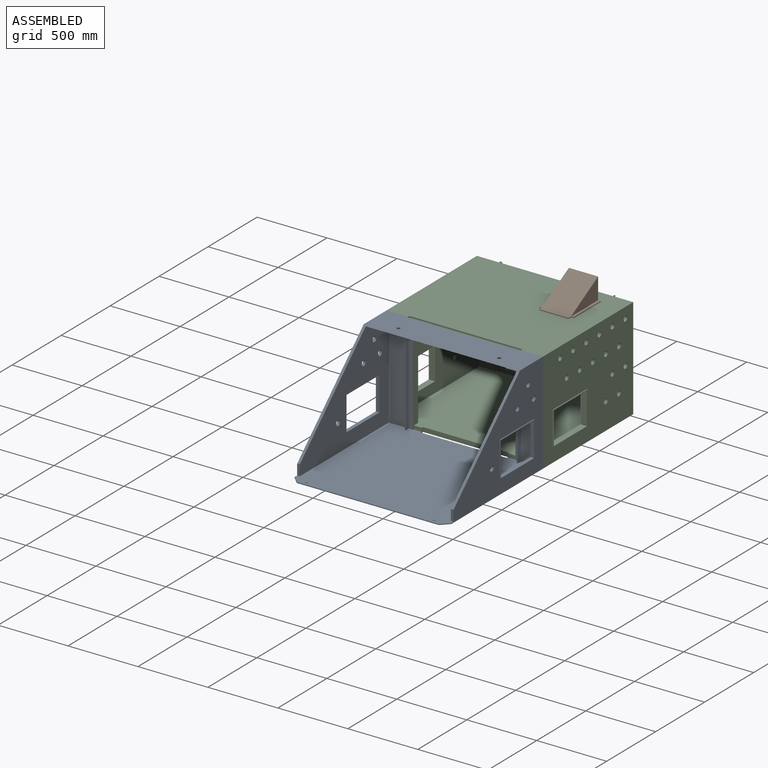
[diagram: assembled view]
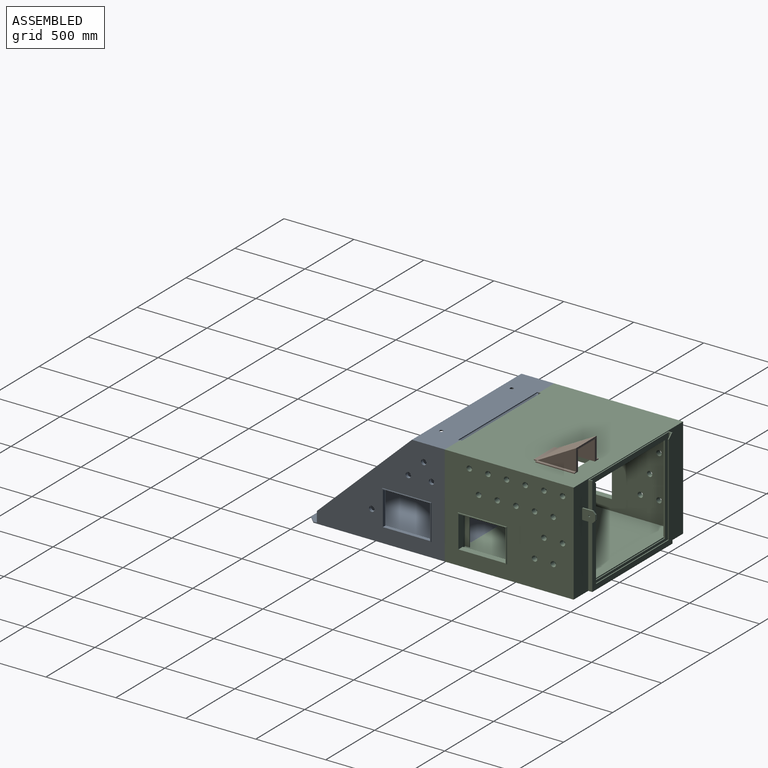
[diagram: assembled view, second angle]
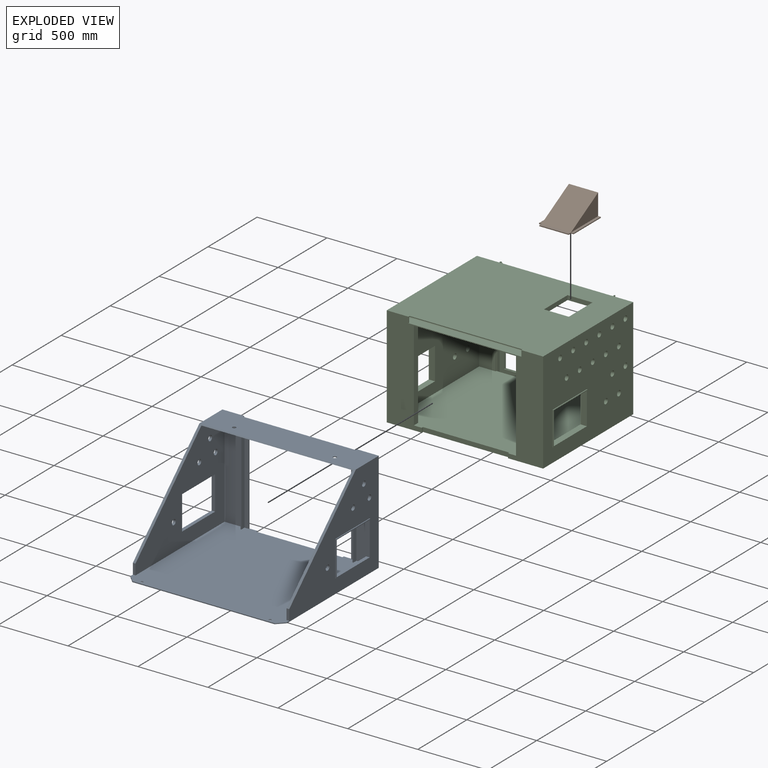
[diagram: exploded view]
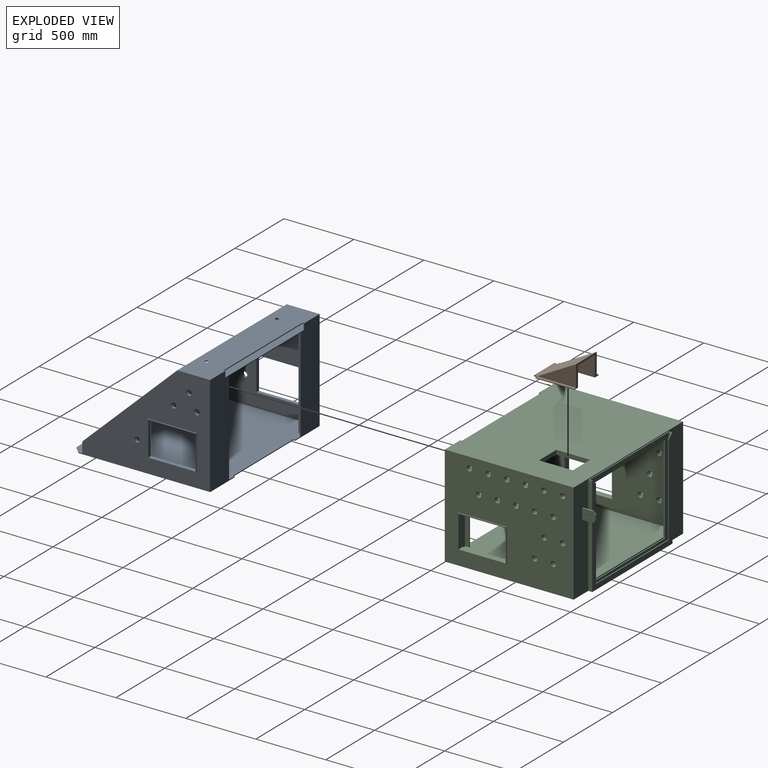
[diagram: exploded view, second angle]
ASSEMBLY  parts=3 mates=2
PART A: 72 faces, bbox 1130.3x990.6x723.9 mm
  f0: plane 1117.6x990.6mm, normal (0,0,-1), area 1096295.5mm2, adj f5,f22,f50,f51,f52,f63,f67,f68
  f1: plane 1117.6x990.6mm, normal (0,0,1), area 1058835.9mm2, adj f2,f3,f5,f6,f8,f9,f10,f19
  f2: plane 75.85x19.05mm, normal (0,1,0), area 1444.9mm2, adj f1,f21,f22,f66
  f3: plane 75.85x19.05mm, normal (0,1,0), area 1444.9mm2, adj f1,f5,f20,f66
  f4: plane 1117.6x234.95mm, normal (0,0,1), area 251324.8mm2, adj f5,f16,f17,f22,f53,f63,f64,f65
  f5: plane 939.8x723.9mm, normal (-1,0,0), area 350823.1mm2, adj f0,f1,f3,f4,f37,f38,f39,f40
  f6: plane 669.2x31.75mm, normal (1,0,0), area 21247mm2, adj f1,f7,f60,f62
  f7: plane 1079.5x66.12mm, normal (0,0,-1), area 68751.7mm2, adj f6,f8,f9,f10,f19,f20,f21,f23
  f8: plane 669.2x31.75mm, normal (-1,0,0), area 21247mm2, adj f1,f7,f10,f58
  f9: plane 669.2x31.75mm, normal (1,0,0), area 21247mm2, adj f1,f7,f10,f23
  f10: plane 669.2x6.35mm, normal (0,1,0), area 4249.4mm2, adj f1,f7,f8,f9
  f11: plane 1079.5x93.07mm, normal (0,0,-1), area 95346.4mm2, adj f12,f13,f14,f15,f16,f17,f53,f56
  f12: plane 136.53x35.65mm, normal (0,1,0), area 4867.4mm2, adj f11,f13,f16,f54
  f13: plane 93.07x35.65mm, normal (1,0,0), area 2677.8mm2, adj f11,f12,f54,f56
  f14: plane 93.07x35.65mm, normal (-1,0,0), area 2677.8mm2, adj f11,f15,f54,f56
  f15: plane 136.53x35.65mm, normal (0,1,0), area 4867.4mm2, adj f11,f14,f17,f54
  f16: plane 42x12.7mm, normal (1,0,0), area 307mm2, adj f4,f11,f12,f53,f54,f63
  f17: plane 42x12.7mm, normal (-1,0,0), area 307mm2, adj f4,f11,f15,f53,f54,f63
  f18: plane 1079.5x133.24mm, normal (0,0,-1), area 142820.5mm2, adj f20,f21,f55,f64,f65,f66
  f19: plane 669.2x136.53mm, normal (0,1,0), area 91362.3mm2, adj f1,f7,f20,f59
  f20: plane 908.05x711.2mm, normal (1,0,0), area 342927mm2, adj f1,f3,f7,f18,f19,f28,f29,f30
  f21: plane 908.05x711.2mm, normal (-1,0,0), area 342927mm2, adj f1,f2,f7,f18,f23,f24,f25,f26
  f22: plane 939.8x723.9mm, normal (1,0,0), area 350823.1mm2, adj f0,f1,f2,f4,f32,f33,f34,f35
  f23: plane 669.2x136.53mm, normal (0,1,0), area 91362.3mm2, adj f1,f7,f9,f21
  f24: plane 241.3x25.4mm, normal (0,-1,0), area 6129mm2, adj f21,f25,f27,f36
  f25: plane 336.55x25.4mm, normal (0,0,1), area 8548.4mm2, adj f21,f24,f26,f36
  f26: plane 241.3x25.4mm, normal (0,1,0), area 6129mm2, adj f21,f25,f27,f36
  f27: plane 336.55x25.4mm, normal (0,0,-1), area 8548.4mm2, adj f21,f24,f26,f36
  f28: plane 336.55x25.4mm, normal (0,0,-1), area 8548.4mm2, adj f20,f29,f31,f41
  f29: plane 241.3x25.4mm, normal (0,1,0), area 6129mm2, adj f20,f28,f30,f41
  f30: plane 336.55x25.4mm, normal (0,0,1), area 8548.4mm2, adj f20,f29,f31,f41
  f31: plane 241.3x25.4mm, normal (0,-1,0), area 6129mm2, adj f20,f28,f30,f41
  f32: plane 349.25x6.35mm, normal (0,0,1), area 2217.7mm2, adj f22,f33,f35,f36
  f33: plane 254x6.35mm, normal (0,-1,0), area 1612.9mm2, adj f22,f32,f34,f36
  f34: plane 349.25x6.35mm, normal (0,0,-1), area 2217.7mm2, adj f22,f33,f35,f36
  f35: plane 254x6.35mm, normal (0,1,0), area 1612.9mm2, adj f22,f32,f34,f36
  f36: plane 349.25x254mm, normal (1,0,0), area 7500mm2, adj f24,f25,f26,f27,f32,f33,f34,f35
  f37: plane 254x6.35mm, normal (0,-1,0), area 1612.9mm2, adj f5,f38,f40,f41
  f38: plane 349.25x6.35mm, normal (0,0,1), area 2217.7mm2, adj f5,f37,f39,f41
  f39: plane 254x6.35mm, normal (0,1,0), area 1612.9mm2, adj f5,f38,f40,f41
  f40: plane 349.25x6.35mm, normal (0,0,-1), area 2217.7mm2, adj f5,f37,f39,f41
  f41: plane 349.25x254mm, normal (-1,0,0), area 7500mm2, adj f28,f29,f30,f31,f37,f38,f39,f40
  f42: cylinder r=19.05mm len=38.1mm, axis (-1,0,0), area 2280.2mm2, adj f21,f22
  f43: cylinder r=19.05mm len=38.1mm, axis (-1,0,0), area 2280.2mm2, adj f5,f20
  f44: cylinder r=19.05mm len=38.1mm, axis (-1,0,0), area 2280.2mm2, adj f21,f22
  f45: cylinder r=19.05mm len=38.1mm, axis (-1,0,0), area 2280.2mm2, adj f5,f20
  f46: cylinder r=19.05mm len=38.1mm, axis (-1,0,0), area 2280.2mm2, adj f21,f22
  f47: cylinder r=19.05mm len=38.1mm, axis (-1,0,0), area 2280.2mm2, adj f5,f20
  f48: cylinder r=19.05mm len=38.1mm, axis (-1,0,0), area 2280.2mm2, adj f21,f22
  f49: cylinder r=19.05mm len=38.1mm, axis (-1,0,0), area 2280.2mm2, adj f5,f20
  f50: plane 12.7x6.35mm, normal (1,0,0), area 80.6mm2, adj f0,f1,f52,f63
  f51: plane 12.7x6.35mm, normal (-1,0,0), area 80.6mm2, adj f0,f1,f52,f63
  f52: plane 615.95x6.35mm, normal (0,-1,0), area 3911.3mm2, adj f0,f1,f50,f51
  f53: plane 806.45x6.35mm, normal (0,-1,0), area 5121mm2, adj f4,f11,f16,f17
  f54: plane 1079.5x63.5mm, normal (0,0,1), area 66814.4mm2, adj f12,f13,f14,f15,f16,f17,f56,f63
  f55: plane 1079.5x42.32mm, normal (0,0.7,-0.71), area 64362mm2, adj f7,f18,f20,f21
  f56: plane 1079.5x35.92mm, normal (0,-0.7,0.71), area 54631.5mm2, adj f11,f13,f14,f54
  f57: plane 669.2x6.35mm, normal (-1,0,0), area 4249.4mm2, adj f1,f7,f58,f63
  f58: plane 669.2x31.75mm, normal (0,1,0), area 21247mm2, adj f1,f7,f8,f57
  f59: plane 669.2x31.75mm, normal (-1,0,0), area 21247mm2, adj f1,f7,f19,f60
  f60: plane 669.2x6.35mm, normal (0,1,0), area 4249.4mm2, adj f1,f6,f7,f59
  f61: plane 669.2x6.35mm, normal (1,0,0), area 4249.4mm2, adj f1,f7,f62,f63
  f62: plane 669.2x31.75mm, normal (0,1,0), area 21247mm2, adj f1,f6,f7,f61
  f63: plane 1117.6x723.9mm, normal (0,-1,0), area 282565mm2, adj f0,f1,f4,f5,f7,f16,f17,f22
  f64: cylinder r=12.7mm len=25.4mm, axis (0,0,1), area 506.7mm2, adj f4,f18
  f65: cylinder r=12.7mm len=25.4mm, axis (0,0,1), area 506.7mm2, adj f4,f18
  f66: plane 1117.6x679.45mm, normal (0,0.69,0.73), area 45590.8mm2, adj f2,f3,f4,f5,f18,f20,f21,f22
  f67: plane 1016x6.35mm, normal (0,1,0), area 6451.6mm2, adj f0,f1,f68,f69
  f68: plane 50.8x50.8mm, normal (-0.71,0.71,0), area 456.2mm2, adj f0,f1,f5,f67
  f69: plane 50.8x50.8mm, normal (0.71,0.71,0), area 456.2mm2, adj f0,f1,f22,f67
  f70: cylinder r=7.94mm len=15.88mm, axis (0,0,1), area 316.7mm2, adj f0,f1
  f71: cylinder r=7.94mm len=15.88mm, axis (0,0,1), area 316.7mm2, adj f0,f1
PART B: 26 faces, bbox 247.7x302.8x164.3 mm
  f0: plane 277.95x152.4mm, normal (1,0,0), area 21180.1mm2, adj f4,f5,f7
  f1: plane 24.15x6.35mm, normal (1,0,0), area 153.4mm2, adj f6,f7,f12,f14
  f2: plane 24.24x6.35mm, normal (-1,0,0), area 153.9mm2, adj f6,f7,f8,f12
  f3: plane 277.95x152.4mm, normal (-1,0,0), area 21180.1mm2, adj f4,f5,f7
  f4: plane 277.95x209.55mm, normal (0,0.48,0.88), area 66425.7mm2, adj f0,f3,f5,f7
  f5: plane 209.55x158.75mm, normal (0,-1,0), area 7106mm2, adj f0,f3,f4,f6,f11,f15,f17,f18
  f6: plane 302.26x247.65mm, normal (0,0,-1), area 26216mm2, adj f1,f2,f5,f8,f9,f10,f11,f12
  f7: plane 302.26x247.65mm, normal (0,0,1), area 15682.5mm2, adj f0,f1,f2,f3,f4,f8,f9,f10
  f8: plane 19.05x6.35mm, normal (0,1,0), area 121mm2, adj f2,f6,f7,f9
  f9: plane 278.03x6.35mm, normal (-1,0,0), area 1765.5mm2, adj f6,f7,f8,f10
  f10: plane 19.05x6.35mm, normal (0,-1,0), area 121mm2, adj f6,f7,f9,f11
  f11: plane 6.35x0.03mm, normal (1,0,0), area 0.2mm2, adj f5,f6,f7,f10
  f12: plane 209.55x6.35mm, normal (0,1,0), area 1330.6mm2, adj f1,f2,f6,f7
  f13: plane 278.11x6.35mm, normal (1,0,0), area 1766mm2, adj f6,f7,f14,f16
  f14: plane 19.05x6.35mm, normal (0,1,0), area 121mm2, adj f1,f6,f7,f13
  f15: plane 6.35x0.03mm, normal (-1,0,0), area 0.2mm2, adj f5,f6,f7,f16
  f16: plane 19.05x6.35mm, normal (0,-1,0), area 121mm2, adj f6,f7,f13,f15
  f17: plane 7.24x0.6mm, normal (-1,0,0), area 2.2mm2, adj f5,f22,f23
  f18: plane 7.24x0.6mm, normal (1,0,0), area 2.2mm2, adj f5,f22,f23
  f19: plane 13.21x5.57mm, normal (-1,0,0), area 36.8mm2, adj f6,f20,f23
  f20: plane 196.85x5.57mm, normal (0,0.88,-0.48), area 1250mm2, adj f6,f19,f21,f23
  f21: plane 13.21x5.57mm, normal (1,0,0), area 36.8mm2, adj f6,f20,f23
  f22: plane 196.85x6.91mm, normal (0,-1,0.09), area 1365.5mm2, adj f5,f17,f18,f23
  f23: plane 273.88x196.85mm, normal (0,-0.48,-0.88), area 53863.2mm2, adj f5,f6,f17,f18,f19,f20,f21,f22
  f24: plane 263.12x144.27mm, normal (1,0,0), area 18979.6mm2, adj f5,f6,f23
  f25: plane 263.12x144.27mm, normal (-1,0,0), area 18979.6mm2, adj f5,f6,f23
PART C: 131 faces, bbox 1130.3x1016x723.9 mm
  f0: plane 1041.4x895.35mm, normal (0,0,1), area 914272.4mm2, adj f1,f2,f3,f4,f5,f6,f7,f8
  f1: plane 857.25x685.8mm, normal (-1,0,0), area 471706.8mm2, adj f0,f13,f14,f15,f16,f55,f56,f57
  f2: plane 857.25x685.8mm, normal (1,0,0), area 471706.8mm2, adj f0,f13,f14,f15,f16,f59,f60,f61
  f3: plane 643.8x44.45mm, normal (-1,0,0), area 28616.8mm2, adj f0,f12,f13,f33
  f4: plane 660.4x6.35mm, normal (0,-1,0), area 4193.5mm2, adj f0,f16,f49,f127
  f5: plane 660.4x6.35mm, normal (0,-1,0), area 4193.5mm2, adj f0,f16,f51,f129
  f6: plane 643.8x31.75mm, normal (0,1,0), area 20440.6mm2, adj f0,f8,f13,f123
  f7: plane 643.8x31.75mm, normal (0,1,0), area 20440.6mm2, adj f0,f11,f13,f125
  f8: plane 643.8x31.75mm, normal (-1,0,0), area 20440.6mm2, adj f0,f6,f10,f13
  f9: plane 643.8x44.45mm, normal (1,0,0), area 28616.8mm2, adj f0,f10,f13,f33
  f10: plane 643.8x6.35mm, normal (0,1,0), area 4088.1mm2, adj f0,f8,f9,f13
  f11: plane 643.8x31.75mm, normal (1,0,0), area 20440.6mm2, adj f0,f7,f12,f13
  f12: plane 643.8x6.35mm, normal (0,1,0), area 4088.1mm2, adj f0,f3,f11,f13
  f13: plane 1041.4x66.12mm, normal (0,0,-1), area 60023mm2, adj f1,f2,f3,f6,f7,f8,f9,f10
  f14: plane 1041.4x42.32mm, normal (0,0.7,-0.71), area 62090.4mm2, adj f1,f2,f13,f15
  f15: plane 1041.4x25.4mm, normal (0,-1,0), area 26451.6mm2, adj f1,f2,f14,f16
  f16: plane 1041.4x786.92mm, normal (0,0,-1), area 775101mm2, adj f1,f2,f4,f5,f15,f103,f104,f105
  f17: plane 31.71x31.39mm, normal (-0.7,0,0.71), area 283.3mm2, adj f18,f22,f23,f24
  f18: plane 6.35x0.04mm, normal (0,0,1), area 0.2mm2, adj f17,f23,f24,f27
  f19: plane 31.75x31.39mm, normal (0.7,0,0.71), area 283.5mm2, adj f20,f23,f24,f31
  f20: plane 648.06x6.35mm, normal (1,0,0), area 4115.2mm2, adj f19,f21,f23,f24
  f21: plane 742.95x6.35mm, normal (0,0,1), area 4717.7mm2, adj f20,f22,f23,f24
  f22: plane 648.06x6.35mm, normal (-1,0,0), area 4115.2mm2, adj f17,f21,f23,f24
  f23: plane 819.15x717.59mm, normal (0,1,0), area 81987.8mm2, adj f17,f18,f19,f20,f21,f22,f27,f28
  f24: plane 806.45x711.2mm, normal (0,-1,0), area 67753.8mm2, adj f17,f18,f19,f20,f21,f22,f25,f26
  f25: plane 711.2x15.88mm, normal (1,0,0), area 11290.3mm2, adj f24,f26,f31,f46
  f26: plane 806.45x15.88mm, normal (0,0,1), area 12802.4mm2, adj f24,f25,f27,f46
  f27: plane 711.24x28.58mm, normal (-1,0,0), area 11291.4mm2, adj f18,f23,f24,f26,f28,f31,f46,f52
  f28: plane 28.58x6.35mm, normal (0.01,0,1), area 181.5mm2, adj f23,f27,f29,f52
  f29: plane 717.55x28.58mm, normal (1,0,0), area 20504mm2, adj f23,f28,f30,f52
  f30: plane 1117.6x949.33mm, normal (0,0,-1), area 1044614.8mm2, adj f23,f29,f32,f33,f52,f53,f54,f115
  f31: plane 812.8x28.58mm, normal (0,0,1), area 5302.4mm2, adj f19,f23,f25,f27,f32,f46,f52
  f32: plane 717.55x28.58mm, normal (-1,0,0), area 20504mm2, adj f23,f30,f31,f52
  f33: plane 1117.6x723.9mm, normal (0,-1,0), area 285468.3mm2, adj f0,f3,f9,f13,f30,f39,f40,f41
  f34: plane 1092.2x93.07mm, normal (0,0,-1), area 96528.4mm2, adj f35,f36,f37,f38,f39,f40,f118,f120
  f35: plane 142.88x35.65mm, normal (0,1,0), area 5093.7mm2, adj f34,f36,f39,f119
  f36: plane 93.07x35.65mm, normal (1,0,0), area 2677.8mm2, adj f34,f35,f119,f120
  f37: plane 93.07x35.65mm, normal (-1,0,0), area 2677.8mm2, adj f34,f38,f119,f120
  f38: plane 142.88x35.65mm, normal (0,1,0), area 5093.7mm2, adj f34,f37,f40,f119
  f39: plane 42x12.7mm, normal (1,0,0), area 307mm2, adj f33,f34,f35,f41,f118,f119
  f40: plane 42x12.7mm, normal (-1,0,0), area 307mm2, adj f33,f34,f38,f41,f118,f119
  f41: plane 1117.6x920.75mm, normal (0,0,1), area 975885.1mm2, adj f33,f39,f40,f52,f53,f54,f103,f104
  f42: plane 635x6.35mm, normal (1,0,0), area 4032.3mm2, adj f43,f45,f46,f47
  f43: plane 730.25x6.35mm, normal (0,0,-1), area 4637.1mm2, adj f42,f44,f46,f47
  f44: plane 635x6.35mm, normal (-1,0,0), area 4032.3mm2, adj f43,f45,f46,f47
  f45: plane 730.25x6.35mm, normal (0,0,1), area 4637.1mm2, adj f42,f44,f46,f47
  f46: plane 806.45x711.2mm, normal (0,1,0), area 109838.5mm2, adj f25,f26,f27,f31,f42,f43,f44,f45
  f47: plane 793.75x698.5mm, normal (0,-1,0), area 90725.6mm2, adj f42,f43,f44,f45,f48,f49,f50,f51
  f48: plane 793.75x25.4mm, normal (0,0,-1), area 20161.2mm2, adj f47,f49,f51,f121
  f49: plane 698.5x25.4mm, normal (1,0,0), area 17741.9mm2, adj f4,f47,f48,f50,f121,f122
  f50: plane 793.75x25.4mm, normal (0,0,1), area 20161.2mm2, adj f47,f49,f51,f122
  f51: plane 698.5x25.4mm, normal (-1,0,0), area 17741.9mm2, adj f5,f47,f48,f50,f121,f122
  f52: plane 1117.6x723.9mm, normal (0,1,0), area 220523.6mm2, adj f27,f28,f29,f30,f31,f32,f41,f53
  f53: plane 920.75x723.9mm, normal (-1,0,0), area 565155.5mm2, adj f30,f33,f41,f52,f68,f69,f70,f71
  f54: plane 920.75x723.9mm, normal (1,0,0), area 565155.5mm2, adj f30,f33,f41,f52,f63,f64,f65,f66
  f55: plane 336.55x44.45mm, normal (0,0,1), area 14959.6mm2, adj f1,f56,f58,f67
  f56: plane 228.6x44.45mm, normal (0,1,0), area 10161.3mm2, adj f1,f55,f57,f67
  f57: plane 336.55x44.45mm, normal (0,0,-1), area 14959.6mm2, adj f1,f56,f58,f67
  f58: plane 228.6x44.45mm, normal (0,-1,0), area 10161.3mm2, adj f1,f55,f57,f67
  f59: plane 228.6x44.45mm, normal (0,-1,0), area 10161.3mm2, adj f2,f60,f62,f72
  f60: plane 336.55x44.45mm, normal (0,0,-1), area 14959.6mm2, adj f2,f59,f61,f72
  f61: plane 228.6x44.45mm, normal (0,1,0), area 10161.3mm2, adj f2,f60,f62,f72
  f62: plane 336.55x44.45mm, normal (0,0,1), area 14959.6mm2, adj f2,f59,f61,f72
  f63: plane 241.3x6.35mm, normal (0,-1,0), area 1532.3mm2, adj f54,f64,f66,f67
  f64: plane 349.25x6.35mm, normal (0,0,-1), area 2217.7mm2, adj f54,f63,f65,f67
  f65: plane 241.3x6.35mm, normal (0,1,0), area 1532.3mm2, adj f54,f64,f66,f67
  f66: plane 349.25x6.35mm, normal (0,0,1), area 2217.7mm2, adj f54,f63,f65,f67
  f67: plane 349.25x241.3mm, normal (1,0,0), area 7338.7mm2, adj f55,f56,f57,f58,f63,f64,f65,f66
  f68: plane 349.25x6.35mm, normal (0,0,1), area 2217.7mm2, adj f53,f69,f71,f72
  f69: plane 241.3x6.35mm, normal (0,1,0), area 1532.3mm2, adj f53,f68,f70,f72
  f70: plane 349.25x6.35mm, normal (0,0,-1), area 2217.7mm2, adj f53,f69,f71,f72
  f71: plane 241.3x6.35mm, normal (0,-1,0), area 1532.3mm2, adj f53,f68,f70,f72
  f72: plane 349.25x241.3mm, normal (-1,0,0), area 7338.7mm2, adj f59,f60,f61,f62,f68,f69,f70,f71
  f73: cylinder r=19.05mm len=38.1mm, axis (-1,0,0), area 4560.4mm2, adj f1,f54
  f74: cylinder r=19.05mm len=38.1mm, axis (-1,0,0), area 4560.4mm2, adj f2,f53
  f75: cylinder r=19.05mm len=38.1mm, axis (-1,0,0), area 4560.4mm2, adj f1,f54
  f76: cylinder r=19.05mm len=38.1mm, axis (-1,0,0), area 4560.4mm2, adj f2,f53
  f77: cylinder r=19.05mm len=38.1mm, axis (-1,0,0), area 4560.4mm2, adj f1,f54
  f78: cylinder r=19.05mm len=38.1mm, axis (-1,0,0), area 4560.4mm2, adj f2,f53
  f79: cylinder r=19.05mm len=38.1mm, axis (-1,0,0), area 4560.4mm2, adj f1,f54
  f80: cylinder r=19.05mm len=38.1mm, axis (-1,0,0), area 4560.4mm2, adj f2,f53
  f81: cylinder r=19.05mm len=38.1mm, axis (-1,0,0), area 4560.4mm2, adj f1,f54
  f82: cylinder r=19.05mm len=38.1mm, axis (-1,0,0), area 4560.4mm2, adj f2,f53
  f83: cylinder r=19.05mm len=38.1mm, axis (-1,0,0), area 4560.4mm2, adj f1,f54
  f84: cylinder r=19.05mm len=38.1mm, axis (-1,0,0), area 4560.4mm2, adj f2,f53
  f85: cylinder r=19.05mm len=38.1mm, axis (-1,0,0), area 4560.4mm2, adj f1,f54
  f86: cylinder r=19.05mm len=38.1mm, axis (-1,0,0), area 4560.4mm2, adj f2,f53
  f87: cylinder r=19.05mm len=38.1mm, axis (-1,0,0), area 4560.4mm2, adj f1,f54
  f88: cylinder r=19.05mm len=38.1mm, axis (-1,0,0), area 4560.4mm2, adj f2,f53
  f89: cylinder r=19.05mm len=38.1mm, axis (-1,0,0), area 4560.4mm2, adj f1,f54
  f90: cylinder r=19.05mm len=38.1mm, axis (-1,0,0), area 4560.4mm2, adj f2,f53
  f91: cylinder r=19.05mm len=38.1mm, axis (-1,0,0), area 4560.4mm2, adj f1,f54
  f92: cylinder r=19.05mm len=38.1mm, axis (-1,0,0), area 4560.4mm2, adj f2,f53
  f93: cylinder r=19.05mm len=38.1mm, axis (-1,0,0), area 4560.4mm2, adj f1,f54
  f94: cylinder r=19.05mm len=38.1mm, axis (-1,0,0), area 4560.4mm2, adj f2,f53
  f95: cylinder r=19.05mm len=38.1mm, axis (-1,0,0), area 4560.4mm2, adj f1,f54
  f96: cylinder r=19.05mm len=38.1mm, axis (-1,0,0), area 4560.4mm2, adj f2,f53
  f97: cylinder r=19.05mm len=38.1mm, axis (-1,0,0), area 4560.4mm2, adj f1,f54
  f98: cylinder r=19.05mm len=38.1mm, axis (-1,0,0), area 4560.4mm2, adj f2,f53
  f99: cylinder r=19.05mm len=38.1mm, axis (-1,0,0), area 4560.4mm2, adj f1,f54
  f100: cylinder r=19.05mm len=38.1mm, axis (-1,0,0), area 4560.4mm2, adj f2,f53
  f101: cylinder r=19.05mm len=38.1mm, axis (-1,0,0), area 4560.4mm2, adj f1,f54
  f102: cylinder r=19.05mm len=38.1mm, axis (-1,0,0), area 4560.4mm2, adj f2,f53
  f103: plane 241.3x31.75mm, normal (1,0,0), area 7661.3mm2, adj f16,f41,f104,f106
  f104: plane 177.8x31.75mm, normal (0,1,0), area 5645.2mm2, adj f16,f41,f103,f105
  f105: plane 241.3x31.75mm, normal (-1,0,0), area 7661.3mm2, adj f16,f41,f104,f106
  f106: plane 177.8x31.75mm, normal (0,-1,0), area 5645.1mm2, adj f16,f41,f103,f105
  f107: plane 76.2x9.53mm, normal (0,0,-1), area 725.8mm2, adj f52,f108,f110,f113
  f108: plane 95.25x76.2mm, normal (1,0,0), area 6768.5mm2, adj f52,f107,f109,f111,f112,f113,f114
  f109: plane 76.2x9.53mm, normal (0,0,1), area 725.8mm2, adj f52,f108,f110,f112
  f110: plane 95.25x76.2mm, normal (-1,0,0), area 6768.5mm2, adj f52,f107,f109,f111,f112,f113,f114
  f111: plane 38.1x9.53mm, normal (0,1,0), area 362.9mm2, adj f108,f110,f112,f113
  f112: plane 19.05x19.05mm, normal (0,0.71,0.71), area 256.6mm2, adj f108,f109,f110,f111
  f113: plane 19.05x19.05mm, normal (0,0.71,-0.71), area 256.6mm2, adj f107,f108,f110,f111
  f114: cylinder r=6.35mm len=12.7mm, axis (-1,0,0), area 380mm2, adj f108,f110
  f115: plane 31.75x12.7mm, normal (-1,0,0), area 403.2mm2, adj f0,f30,f33,f116
  f116: plane 615.95x31.75mm, normal (0,-1,0), area 19556.4mm2, adj f0,f30,f115,f117
  f117: plane 31.75x12.7mm, normal (1,0,0), area 403.2mm2, adj f0,f30,f33,f116
  f118: plane 806.45x6.35mm, normal (0,-1,0), area 5121mm2, adj f34,f39,f40,f41
  f119: plane 1092.2x63.5mm, normal (0,0,1), area 67540.2mm2, adj f33,f35,f36,f37,f38,f39,f40,f120
  f120: plane 1092.2x35.92mm, normal (0,-0.7,0.71), area 55274.2mm2, adj f34,f36,f37,f119
  f121: plane 793.75x19.05mm, normal (0,1,0), area 15120.9mm2, adj f16,f48,f49,f51
  f122: plane 793.75x19.05mm, normal (0,1,0), area 15120.9mm2, adj f0,f49,f50,f51
  f123: plane 643.8x19.05mm, normal (1,0,0), area 12264.4mm2, adj f0,f6,f13,f124
  f124: plane 643.8x117.48mm, normal (0,1,0), area 75630.2mm2, adj f0,f2,f13,f123
  f125: plane 643.8x19.05mm, normal (-1,0,0), area 12264.4mm2, adj f0,f7,f13,f126
  f126: plane 643.8x117.48mm, normal (0,1,0), area 75630.2mm2, adj f0,f1,f13,f125
  f127: plane 660.4x6.35mm, normal (1,0,0), area 4193.5mm2, adj f0,f4,f16,f128
  f128: plane 660.4x117.48mm, normal (0,-1,0), area 77580.5mm2, adj f0,f2,f16,f127
  f129: plane 660.4x6.35mm, normal (-1,0,0), area 4193.5mm2, adj f0,f5,f16,f130
  f130: plane 660.4x117.48mm, normal (0,-1,0), area 77580.5mm2, adj f0,f1,f16,f129
PLACE A rot(axis=(0,0,1),180deg) t=(856.96,-1878.94,602.57)mm
PLACE B rot(axis=(0,0,1),180deg) t=(1238.83,-432.76,964.52)mm
PLACE C t=(856.96,-37.44,602.57)mm
MATE fastened C.f33 <-> A.f63  axis (0,-1,0) through (856.96,-958.19,916.16)mm
MATE fastened B.f6 <-> C.f41  axis (0,0,-1) through (1134.06,-445.46,964.52)mm
